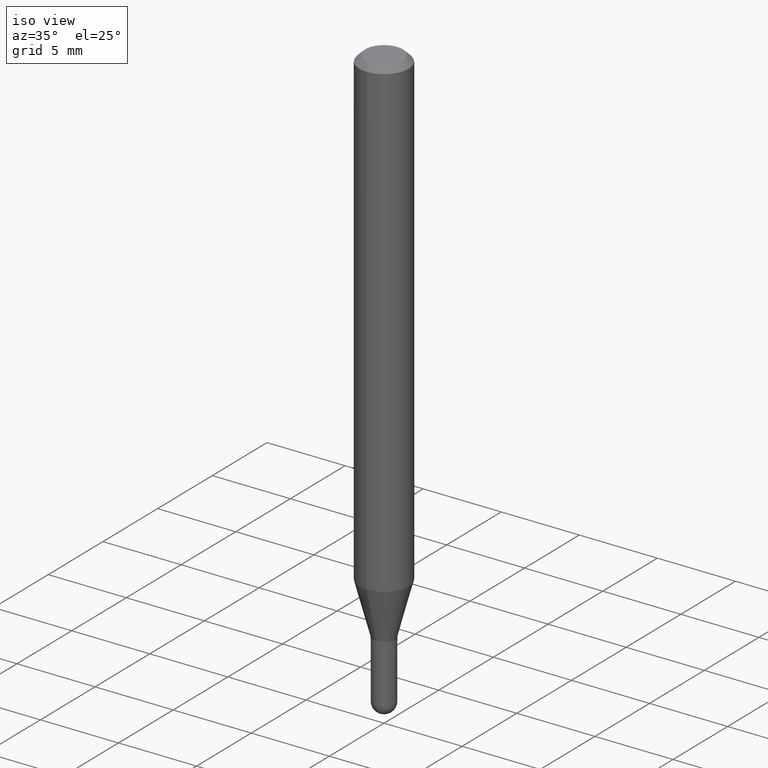
[diagram: clean part render]
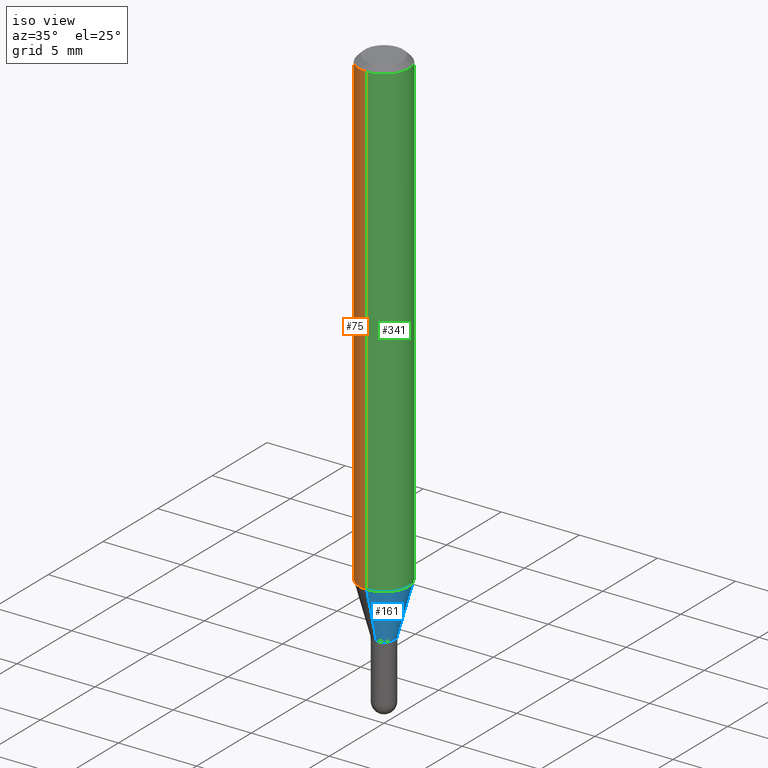
[diagram: same view with three faces highlighted in distinct colors, each labeled with its STEP entity id]
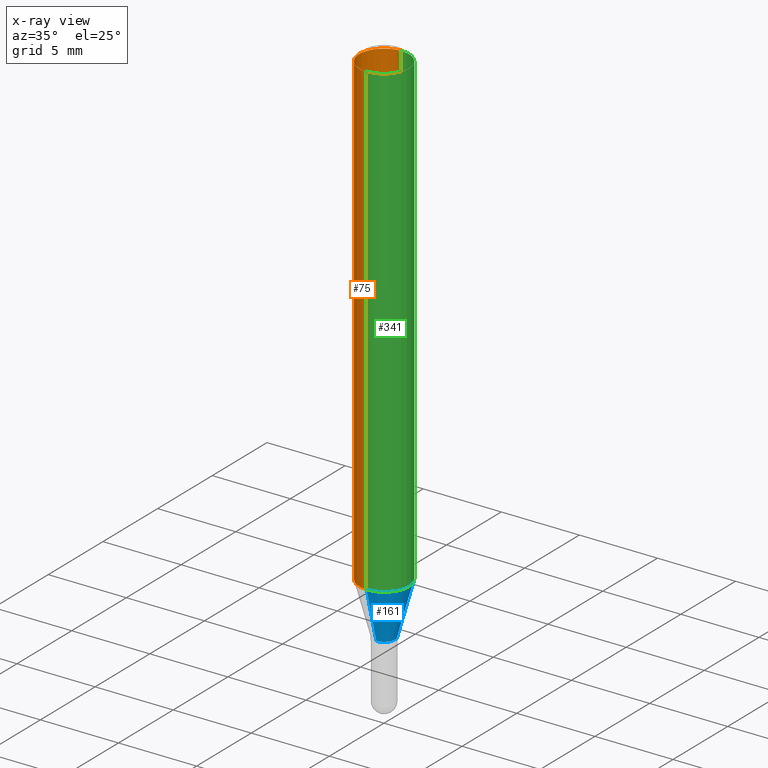
[diagram: x-ray of the same camera — body ghosted, the three highlighted faces saturated]
A machine part, iso view with three faces highlighted in distinct colors.
The next image is the same camera in x-ray (body ghosted, the three faces saturated) — at least one of them is partly hidden behind the body in this view.
Their STEP definitions:

[orange] entity #75 — the highlighted cylindrical surface (edge-blend (fillet) strip) has radius 1.5875 mm, axis along (-0, 0, 1).
#18 = ORIENTED_EDGE ( 'NONE', *, *, #237, .F. ) ;
#28 = CARTESIAN_POINT ( 'NONE',  ( 3.668179526782907853E-31, -5.237255922945198530E-17, -0.01500000000000000812 ) ) ;
#33 = EDGE_CURVE ( 'NONE', #333, #337, #461, .T. ) ;
#43 = EDGE_CURVE ( 'NONE', #221, #57, #418, .T. ) ;
#57 = VERTEX_POINT ( 'NONE', #234 ) ;
#60 = DIRECTION ( 'NONE',  ( -2.445453017855270407E-29, 3.491503948630129740E-15, 1.000000000000000000 ) ) ;
#75 = ADVANCED_FACE ( 'NONE', ( #193 ), #417, .T. ) ;
#87 = CARTESIAN_POINT ( 'NONE',  ( -4.364351673553912750E-16, -0.06250000000000005551, -0.01499999999999979128 ) ) ;
#91 = ORIENTED_EDGE ( 'NONE', *, *, #311, .T. ) ;
#108 = ORIENTED_EDGE ( 'NONE', *, *, #43, .T. ) ;
#124 = AXIS2_PLACEMENT_3D ( 'NONE', #458, #196, #351 ) ;
#127 = LINE ( 'NONE', #203, #191 ) ;
#131 = LINE ( 'NONE', #405, #158 ) ;
#134 = CARTESIAN_POINT ( 'NONE',  ( 4.440892098500920012E-16, 0.06249999999999995143, -0.01500000000000022669 ) ) ;
#143 = EDGE_LOOP ( 'NONE', ( #18, #108, #91, #490 ) ) ;
#158 = VECTOR ( 'NONE', #60, 39.37007874015748143 ) ;
#166 = DIRECTION ( 'NONE',  ( -2.445453017855270407E-29, 3.491503948630129740E-15, 1.000000000000000000 ) ) ;
#191 = VECTOR ( 'NONE', #166, 39.37007874015748143 ) ;
#193 = FACE_OUTER_BOUND ( 'NONE', #143, .T. ) ;
#196 = DIRECTION ( 'NONE',  ( -2.445453017855270407E-29, 3.491503948630130135E-15, 1.000000000000000000 ) ) ;
#203 = CARTESIAN_POINT ( 'NONE',  ( 4.440892098500625669E-16, 0.06250000000000000000, -2.182189967893831334E-16 ) ) ;
#221 = VERTEX_POINT ( 'NONE', #512 ) ;
#234 = CARTESIAN_POINT ( 'NONE',  ( -4.364351673553625802E-16, -0.06250000000000417721, -1.194378221735089562 ) ) ;
#237 = EDGE_CURVE ( 'NONE', #221, #333, #127, .T. ) ;
#279 = DIRECTION ( 'NONE',  ( -6.982962677686265922E-15, -1.000000000000000000, 3.483106191921935554E-15 ) ) ;
#311 = EDGE_CURVE ( 'NONE', #57, #337, #131, .T. ) ;
#333 = VERTEX_POINT ( 'NONE', #134 ) ;
#337 = VERTEX_POINT ( 'NONE', #87 ) ;
#343 = AXIS2_PLACEMENT_3D ( 'NONE', #500, #386, #412 ) ;
#351 = DIRECTION ( 'NONE',  ( -6.982962677686265922E-15, -1.000000000000000000, 3.491503948630130135E-15 ) ) ;
#377 = DIRECTION ( 'NONE',  ( -2.445453017855270407E-29, 3.491503948630130135E-15, 1.000000000000000000 ) ) ;
#380 = AXIS2_PLACEMENT_3D ( 'NONE', #28, #377, #279 ) ;
#386 = DIRECTION ( 'NONE',  ( -2.445453017855270407E-29, 3.491503948630130135E-15, 1.000000000000000000 ) ) ;
#405 = CARTESIAN_POINT ( 'NONE',  ( -4.364351673553916201E-16, -0.06250000000000000000, 2.182189967893831334E-16 ) ) ;
#412 = DIRECTION ( 'NONE',  ( -6.982962677686265922E-15, -1.000000000000000000, 4.370956789862821150E-15 ) ) ;
#417 = CYLINDRICAL_SURFACE ( 'NONE', #124, 0.06250000000000000000 ) ;
#418 = CIRCLE ( 'NONE', #343, 0.06250000000000000000 ) ;
#458 = CARTESIAN_POINT ( 'NONE',  ( 0.000000000000000000, 0.000000000000000000, 0.000000000000000000 ) ) ;
#461 = CIRCLE ( 'NONE', #380, 0.06250000000000000000 ) ;
#490 = ORIENTED_EDGE ( 'NONE', *, *, #33, .F. ) ;
#500 = CARTESIAN_POINT ( 'NONE',  ( 2.920795826802686836E-29, -4.170176277345898913E-15, -1.194378221735089785 ) ) ;
#512 = CARTESIAN_POINT ( 'NONE',  ( 4.440892098500915082E-16, 0.06249999999999580197, -1.194378221735090229 ) ) ;

[blue] entity #161 — the highlighted conical surface has half-angle 15 deg.
#9 = VERTEX_POINT ( 'NONE', #379 ) ;
#57 = VERTEX_POINT ( 'NONE', #234 ) ;
#67 = ORIENTED_EDGE ( 'NONE', *, *, #439, .T. ) ;
#74 = LINE ( 'NONE', #153, #157 ) ;
#85 = EDGE_CURVE ( 'NONE', #9, #57, #74, .T. ) ;
#103 = DIRECTION ( 'NONE',  ( -2.445453017855270407E-29, 3.491503948630130135E-15, 1.000000000000000000 ) ) ;
#117 = AXIS2_PLACEMENT_3D ( 'NONE', #305, #103, #485 ) ;
#123 = DIRECTION ( 'NONE',  ( -2.445453017855270407E-29, 3.491503948630130135E-15, 1.000000000000000000 ) ) ;
#135 = EDGE_LOOP ( 'NONE', ( #300, #67, #257, #266 ) ) ;
#142 = DIRECTION ( 'NONE',  ( -6.982962677686265922E-15, -1.000000000000000000, 0.000000000000000000 ) ) ;
#144 = EDGE_CURVE ( 'NONE', #57, #221, #175, .T. ) ;
#153 = CARTESIAN_POINT ( 'NONE',  ( -1.920314736363393602E-16, -0.02750000000000454858, -1.325000000000000178 ) ) ;
#157 = VECTOR ( 'NONE', #239, 39.37007874015748143 ) ;
#161 = ADVANCED_FACE ( 'NONE', ( #192 ), #369, .T. ) ;
#172 = DIRECTION ( 'NONE',  ( -2.445453017855270407E-29, 3.491503948630130135E-15, 1.000000000000000000 ) ) ;
#175 = CIRCLE ( 'NONE', #117, 0.06250000000000000000 ) ;
#185 = CARTESIAN_POINT ( 'NONE',  ( 3.197442310920756402E-16, 0.02749999999999529210, -1.325000000000000178 ) ) ;
#189 = LINE ( 'NONE', #378, #387 ) ;
#192 = FACE_OUTER_BOUND ( 'NONE', #135, .T. ) ;
#221 = VERTEX_POINT ( 'NONE', #512 ) ;
#234 = CARTESIAN_POINT ( 'NONE',  ( -4.364351673553625802E-16, -0.06250000000000417721, -1.194378221735089562 ) ) ;
#239 = DIRECTION ( 'NONE',  ( -1.807323732225332900E-15, -0.2588190451025185745, 0.9659258262890689783 ) ) ;
#244 = DIRECTION ( 'NONE',  ( -6.982962677686265922E-15, -1.000000000000000000, 0.000000000000000000 ) ) ;
#257 = ORIENTED_EDGE ( 'NONE', *, *, #144, .F. ) ;
#264 = CIRCLE ( 'NONE', #462, 0.02749999999999992034 ) ;
#266 = ORIENTED_EDGE ( 'NONE', *, *, #85, .F. ) ;
#291 = AXIS2_PLACEMENT_3D ( 'NONE', #421, #123, #244 ) ;
#300 = ORIENTED_EDGE ( 'NONE', *, *, #374, .T. ) ;
#305 = CARTESIAN_POINT ( 'NONE',  ( 2.920795826802686836E-29, -4.170176277345898913E-15, -1.194378221735089785 ) ) ;
#369 = CONICAL_SURFACE ( 'NONE', #291, 0.02749999999999992034, 0.2617993877991506846 ) ;
#374 = EDGE_CURVE ( 'NONE', #9, #403, #264, .T. ) ;
#378 = CARTESIAN_POINT ( 'NONE',  ( 1.953992523340593531E-16, 0.02749999999999529210, -1.325000000000000178 ) ) ;
#379 = CARTESIAN_POINT ( 'NONE',  ( -1.920314736363393602E-16, -0.02750000000000454858, -1.325000000000000178 ) ) ;
#387 = VECTOR ( 'NONE', #499, 39.37007874015748143 ) ;
#403 = VERTEX_POINT ( 'NONE', #185 ) ;
#421 = CARTESIAN_POINT ( 'NONE',  ( 3.240225248658233717E-29, -4.626242731934923858E-15, -1.325000000000000178 ) ) ;
#439 = EDGE_CURVE ( 'NONE', #403, #221, #189, .T. ) ;
#440 = CARTESIAN_POINT ( 'NONE',  ( 3.240225248658233717E-29, -4.626242731934923858E-15, -1.325000000000000178 ) ) ;
#462 = AXIS2_PLACEMENT_3D ( 'NONE', #440, #172, #142 ) ;
#485 = DIRECTION ( 'NONE',  ( -6.982962677686265922E-15, -1.000000000000000000, 4.370956789862821150E-15 ) ) ;
#499 = DIRECTION ( 'NONE',  ( 1.839019923739603076E-15, 0.2588190451025253469, 0.9659258262890670910 ) ) ;
#512 = CARTESIAN_POINT ( 'NONE',  ( 4.440892098500915082E-16, 0.06249999999999580197, -1.194378221735090229 ) ) ;

[green] entity #341 — the highlighted cylindrical surface (edge-blend (fillet) strip) has radius 1.5875 mm, axis along (-0, 0, 1).
#13 = DIRECTION ( 'NONE',  ( -6.982962677686265922E-15, -1.000000000000000000, 3.491503948630130135E-15 ) ) ;
#20 = FACE_OUTER_BOUND ( 'NONE', #325, .T. ) ;
#39 = CIRCLE ( 'NONE', #199, 0.06250000000000000000 ) ;
#56 = DIRECTION ( 'NONE',  ( -2.445453017855270407E-29, 3.491503948630130135E-15, 1.000000000000000000 ) ) ;
#57 = VERTEX_POINT ( 'NONE', #234 ) ;
#60 = DIRECTION ( 'NONE',  ( -2.445453017855270407E-29, 3.491503948630129740E-15, 1.000000000000000000 ) ) ;
#87 = CARTESIAN_POINT ( 'NONE',  ( -4.364351673553912750E-16, -0.06250000000000005551, -0.01499999999999979128 ) ) ;
#97 = ORIENTED_EDGE ( 'NONE', *, *, #383, .F. ) ;
#103 = DIRECTION ( 'NONE',  ( -2.445453017855270407E-29, 3.491503948630130135E-15, 1.000000000000000000 ) ) ;
#117 = AXIS2_PLACEMENT_3D ( 'NONE', #305, #103, #485 ) ;
#127 = LINE ( 'NONE', #203, #191 ) ;
#131 = LINE ( 'NONE', #405, #158 ) ;
#134 = CARTESIAN_POINT ( 'NONE',  ( 4.440892098500920012E-16, 0.06249999999999995143, -0.01500000000000022669 ) ) ;
#144 = EDGE_CURVE ( 'NONE', #57, #221, #175, .T. ) ;
#158 = VECTOR ( 'NONE', #60, 39.37007874015748143 ) ;
#166 = DIRECTION ( 'NONE',  ( -2.445453017855270407E-29, 3.491503948630129740E-15, 1.000000000000000000 ) ) ;
#175 = CIRCLE ( 'NONE', #117, 0.06250000000000000000 ) ;
#191 = VECTOR ( 'NONE', #166, 39.37007874015748143 ) ;
#199 = AXIS2_PLACEMENT_3D ( 'NONE', #402, #56, #220 ) ;
#203 = CARTESIAN_POINT ( 'NONE',  ( 4.440892098500625669E-16, 0.06250000000000000000, -2.182189967893831334E-16 ) ) ;
#220 = DIRECTION ( 'NONE',  ( -6.982962677686265922E-15, -1.000000000000000000, 3.483106191921935554E-15 ) ) ;
#221 = VERTEX_POINT ( 'NONE', #512 ) ;
#224 = CARTESIAN_POINT ( 'NONE',  ( 0.000000000000000000, 0.000000000000000000, 0.000000000000000000 ) ) ;
#234 = CARTESIAN_POINT ( 'NONE',  ( -4.364351673553625802E-16, -0.06250000000000417721, -1.194378221735089562 ) ) ;
#237 = EDGE_CURVE ( 'NONE', #221, #333, #127, .T. ) ;
#255 = DIRECTION ( 'NONE',  ( -2.445453017855270407E-29, 3.491503948630130135E-15, 1.000000000000000000 ) ) ;
#277 = ORIENTED_EDGE ( 'NONE', *, *, #311, .F. ) ;
#305 = CARTESIAN_POINT ( 'NONE',  ( 2.920795826802686836E-29, -4.170176277345898913E-15, -1.194378221735089785 ) ) ;
#311 = EDGE_CURVE ( 'NONE', #57, #337, #131, .T. ) ;
#325 = EDGE_LOOP ( 'NONE', ( #401, #494, #97, #277 ) ) ;
#333 = VERTEX_POINT ( 'NONE', #134 ) ;
#337 = VERTEX_POINT ( 'NONE', #87 ) ;
#341 = ADVANCED_FACE ( 'NONE', ( #20 ), #400, .T. ) ;
#383 = EDGE_CURVE ( 'NONE', #337, #333, #39, .T. ) ;
#400 = CYLINDRICAL_SURFACE ( 'NONE', #409, 0.06250000000000000000 ) ;
#401 = ORIENTED_EDGE ( 'NONE', *, *, #144, .T. ) ;
#402 = CARTESIAN_POINT ( 'NONE',  ( 3.668179526782907853E-31, -5.237255922945198530E-17, -0.01500000000000000812 ) ) ;
#405 = CARTESIAN_POINT ( 'NONE',  ( -4.364351673553916201E-16, -0.06250000000000000000, 2.182189967893831334E-16 ) ) ;
#409 = AXIS2_PLACEMENT_3D ( 'NONE', #224, #255, #13 ) ;
#485 = DIRECTION ( 'NONE',  ( -6.982962677686265922E-15, -1.000000000000000000, 4.370956789862821150E-15 ) ) ;
#494 = ORIENTED_EDGE ( 'NONE', *, *, #237, .T. ) ;
#512 = CARTESIAN_POINT ( 'NONE',  ( 4.440892098500915082E-16, 0.06249999999999580197, -1.194378221735090229 ) ) ;